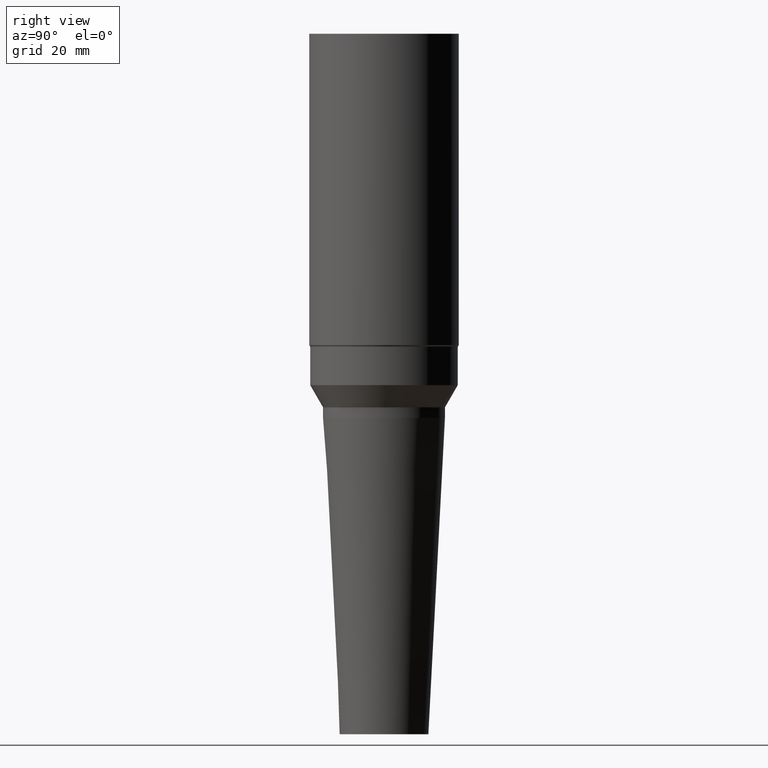
[diagram: clean part render]
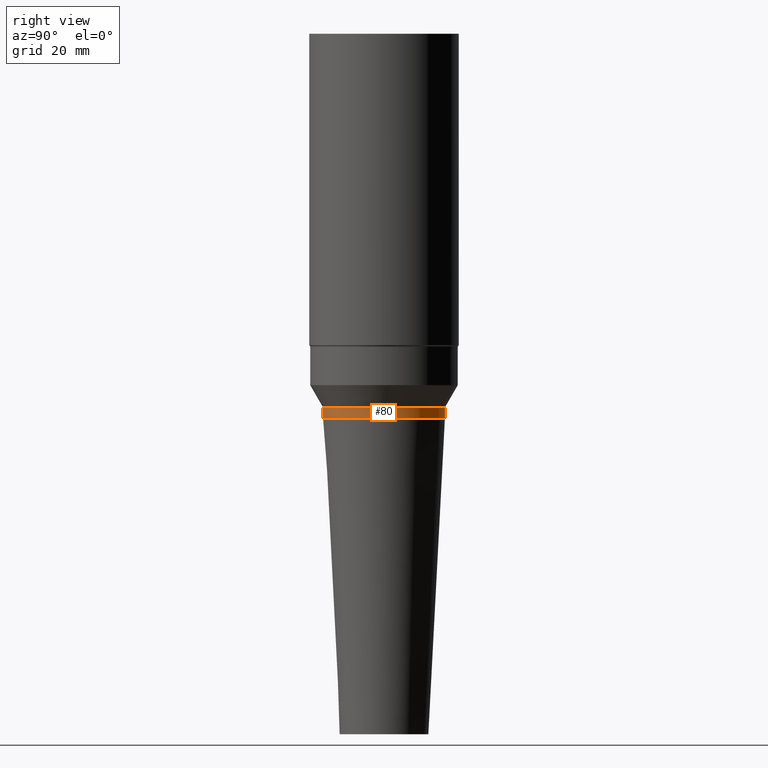
[diagram: same view with one face highlighted and labeled with its STEP entity id]
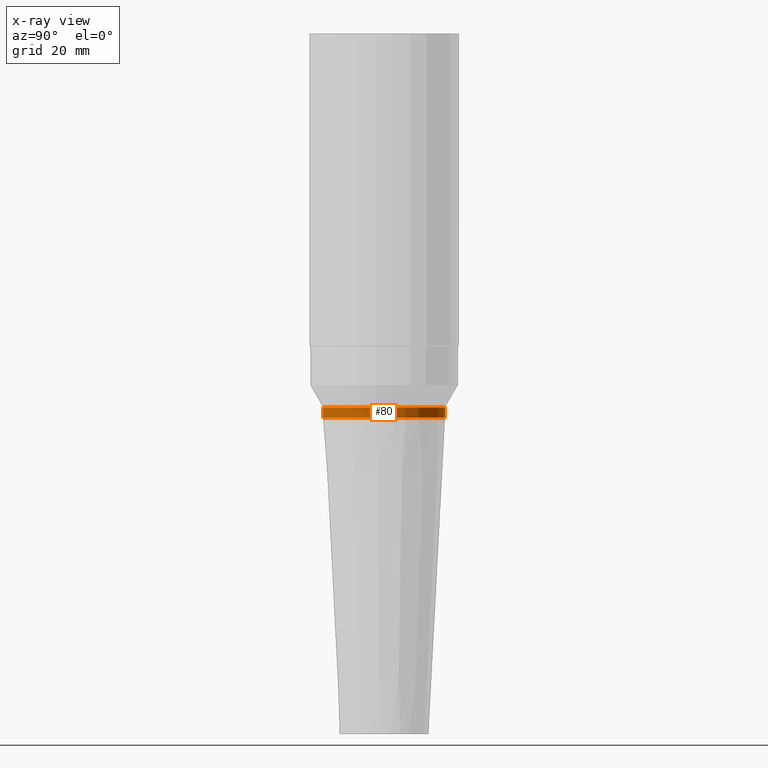
[diagram: x-ray of the same camera — body ghosted, the highlighted face saturated]
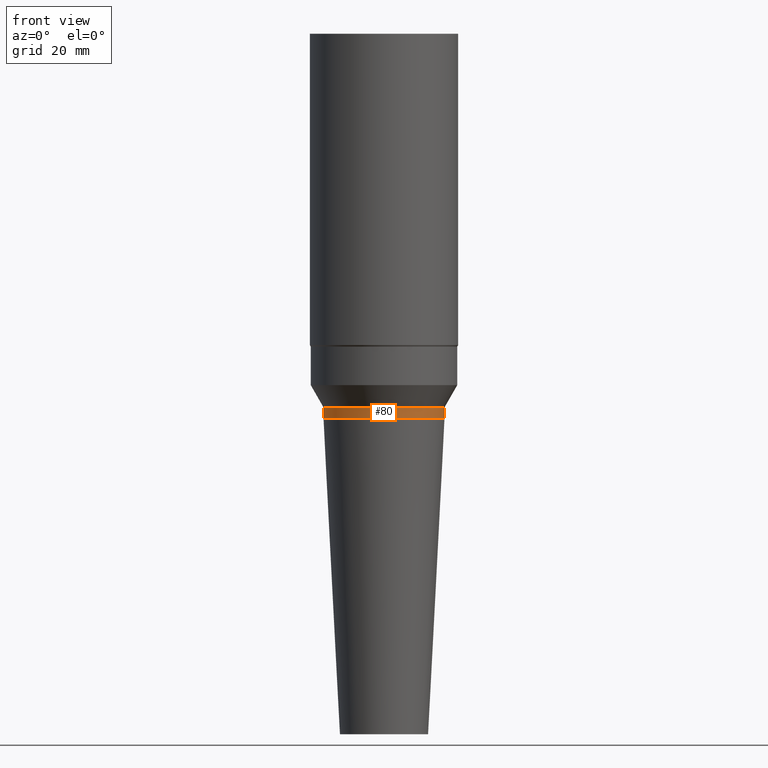
[diagram: same view with one face highlighted and labeled with its STEP entity id]
A machine part, right view. The second image highlights one B-rep face of the part: STEP entity #80.
The next image is the same camera in x-ray: the body ghosted, the highlighted face saturated — about 0% of this face is hidden behind the body in this view.
A second angle (front view) of the same face is appended — the face is thin or edge-on in the first view.
In plain terms, the highlighted cylindrical surface (bore or boss wall) has radius 13.05 mm, axis along (-0, -0, 1).
Its self-contained STEP definition (entity closure, byte-faithful):
#80=ADVANCED_FACE('',(#98,#99),#100,.T.);
#98=FACE_BOUND('',#120,.T.);
#99=FACE_BOUND('',#121,.T.);
#100=CYLINDRICAL_SURFACE('',#122,13.05);
#120=EDGE_LOOP('',(#152));
#121=EDGE_LOOP('',(#153));
#122=AXIS2_PLACEMENT_3D('',#154,#155,#156);
#152=ORIENTED_EDGE('',*,*,#171,.F.);
#153=ORIENTED_EDGE('',*,*,#170,.T.);
#154=CARTESIAN_POINT('',(-4.21701109943778E-015,-8.43402219887556E-015,68.86901762));
#155=DIRECTION('',(-6.12323399573677E-017,-1.22464679914735E-016,1.0));
#156=DIRECTION('',(-1.23259516440783E-032,1.0,1.22464679914735E-016));
#170=EDGE_CURVE('',#181,#181,#182,.T.);
#171=EDGE_CURVE('',#183,#183,#184,.T.);
#181=VERTEX_POINT('',#195);
#182=CIRCLE('',#196,13.05);
#183=VERTEX_POINT('',#197);
#184=CIRCLE('',#198,13.05);
#195=CARTESIAN_POINT('',(-4.28626379701574E-015,13.05,70.0));
#196=AXIS2_PLACEMENT_3D('',#213,#214,#215);
#197=CARTESIAN_POINT('',(-4.14775840185983E-015,13.05,67.73803524));
#198=AXIS2_PLACEMENT_3D('',#216,#217,#218);
#213=CARTESIAN_POINT('',(-4.28626379701574E-015,-8.57252759403147E-015,70.0));
#214=DIRECTION('',(6.12323399573677E-017,1.22464679914735E-016,-1.0));
#215=DIRECTION('',(-1.23259516440783E-032,1.0,1.22464679914735E-016));
#216=CARTESIAN_POINT('',(-4.14775840185983E-015,-8.29551680371966E-015,67.73803524));
#217=DIRECTION('',(6.12323399573677E-017,1.22464679914735E-016,-1.0));
#218=DIRECTION('',(-1.23259516440783E-032,1.0,1.22464679914735E-016));